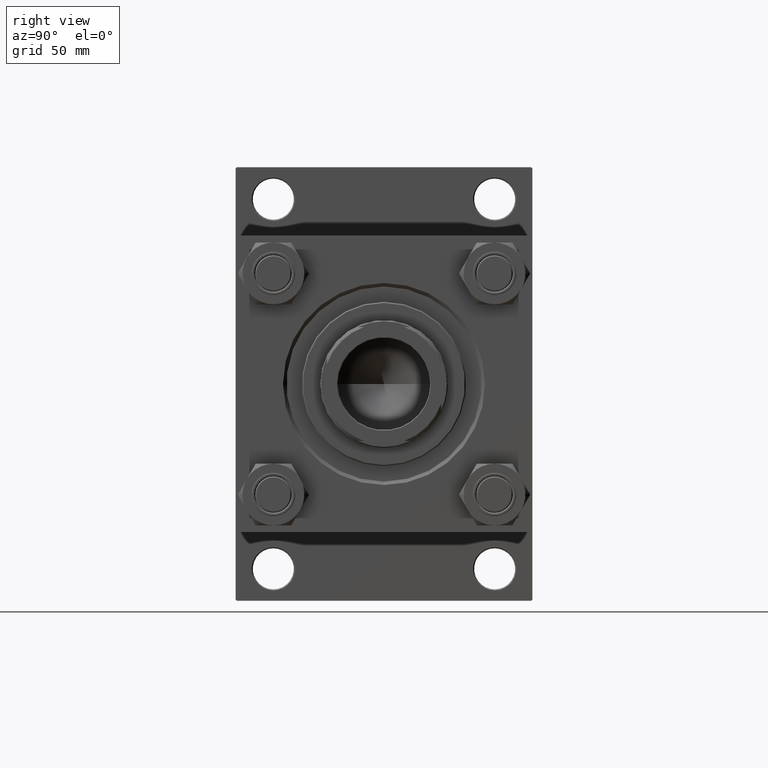
[diagram: clean part render]
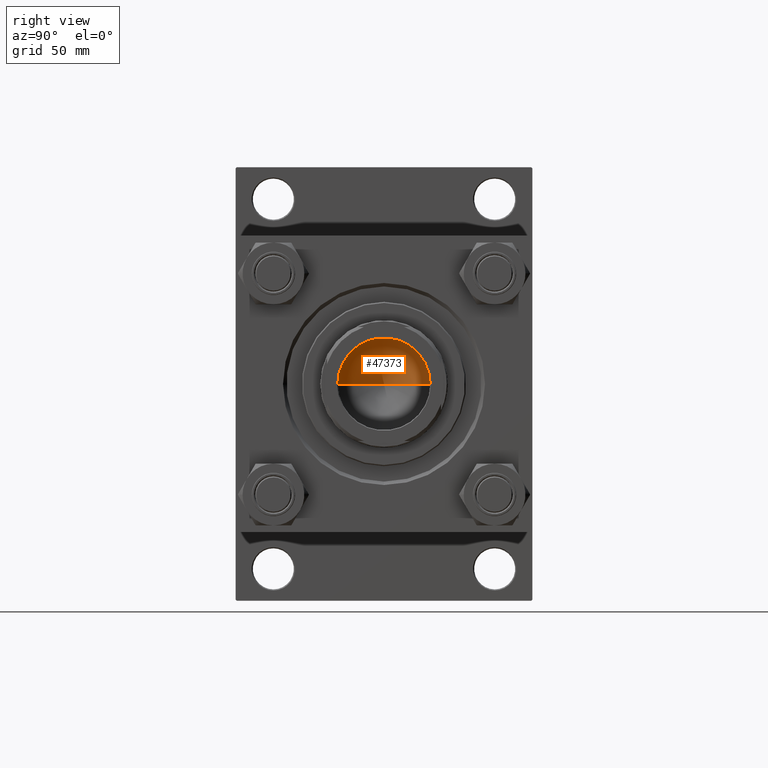
[diagram: same view with one face highlighted and labeled with its STEP entity id]
A machine part, right view. The second image highlights one B-rep face of the part: STEP entity #47373.
In plain terms, the highlighted conical surface has half-angle 59 deg.
Its self-contained STEP definition (entity closure, byte-faithful):
#318 = ORIENTED_EDGE ( 'NONE', *, *, #49100, .T. ) ;
#1254 = VECTOR ( 'NONE', #11686, 1000.000000000000000 ) ;
#2512 = LINE ( 'NONE', #14010, #1254 ) ;
#4500 = ORIENTED_EDGE ( 'NONE', *, *, #38696, .F. ) ;
#5269 = AXIS2_PLACEMENT_3D ( 'NONE', #42634, #22752, #30890 ) ;
#7147 = FACE_OUTER_BOUND ( 'NONE', #23335, .T. ) ;
#9142 = DIRECTION ( 'NONE',  ( -0.000000000000000000, -0.000000000000000000, 1.000000000000000000 ) ) ;
#10006 = CARTESIAN_POINT ( 'NONE',  ( 20.24999999999998934, 0.000000000000000000, 117.0000000000000142 ) ) ;
#11092 = CARTESIAN_POINT ( 'NONE',  ( -1.584115414415908206E-14, 0.000000000000000000, 104.8325724646918928 ) ) ;
#11121 = EDGE_CURVE ( 'NONE', #47662, #39407, #2512, .T. ) ;
#11686 = DIRECTION ( 'NONE',  ( -0.8571673007021115565, 1.049727191138617710E-16, 0.5150380749100554878 ) ) ;
#14010 = CARTESIAN_POINT ( 'NONE',  ( -20.24999999999998934, 2.479909768273389117E-15, 117.0000000000000142 ) ) ;
#16814 = DIRECTION ( 'NONE',  ( 1.000000000000000000, 0.000000000000000000, 0.000000000000000000 ) ) ;
#17835 = VERTEX_POINT ( 'NONE', #31874 ) ;
#20499 = VECTOR ( 'NONE', #37588, 1000.000000000000000 ) ;
#21670 = CIRCLE ( 'NONE', #28171, 20.24999999999998934 ) ;
#22752 = DIRECTION ( 'NONE',  ( -0.000000000000000000, -0.000000000000000000, 1.000000000000000000 ) ) ;
#23335 = EDGE_LOOP ( 'NONE', ( #4500, #29021, #318 ) ) ;
#24868 = CONICAL_SURFACE ( 'NONE', #5269, 20.24999999999998934, 1.029744258676652979 ) ;
#28171 = AXIS2_PLACEMENT_3D ( 'NONE', #44134, #9142, #16814 ) ;
#29021 = ORIENTED_EDGE ( 'NONE', *, *, #11121, .T. ) ;
#30890 = DIRECTION ( 'NONE',  ( 1.000000000000000000, 0.000000000000000000, 0.000000000000000000 ) ) ;
#31874 = CARTESIAN_POINT ( 'NONE',  ( 20.24999999999998934, 0.000000000000000000, 117.0000000000000142 ) ) ;
#37506 = CARTESIAN_POINT ( 'NONE',  ( -20.24999999999998934, 2.479909768273389117E-15, 117.0000000000000142 ) ) ;
#37588 = DIRECTION ( 'NONE',  ( 0.8571673007021115565, 0.000000000000000000, 0.5150380749100554878 ) ) ;
#38696 = EDGE_CURVE ( 'NONE', #47662, #17835, #48848, .T. ) ;
#39407 = VERTEX_POINT ( 'NONE', #37506 ) ;
#42634 = CARTESIAN_POINT ( 'NONE',  ( 0.000000000000000000, 0.000000000000000000, 117.0000000000000142 ) ) ;
#44134 = CARTESIAN_POINT ( 'NONE',  ( 0.000000000000000000, 0.000000000000000000, 117.0000000000000142 ) ) ;
#47373 = ADVANCED_FACE ( 'NONE', ( #7147 ), #24868, .F. ) ;
#47662 = VERTEX_POINT ( 'NONE', #11092 ) ;
#48848 = LINE ( 'NONE', #10006, #20499 ) ;
#49100 = EDGE_CURVE ( 'NONE', #39407, #17835, #21670, .T. ) ;